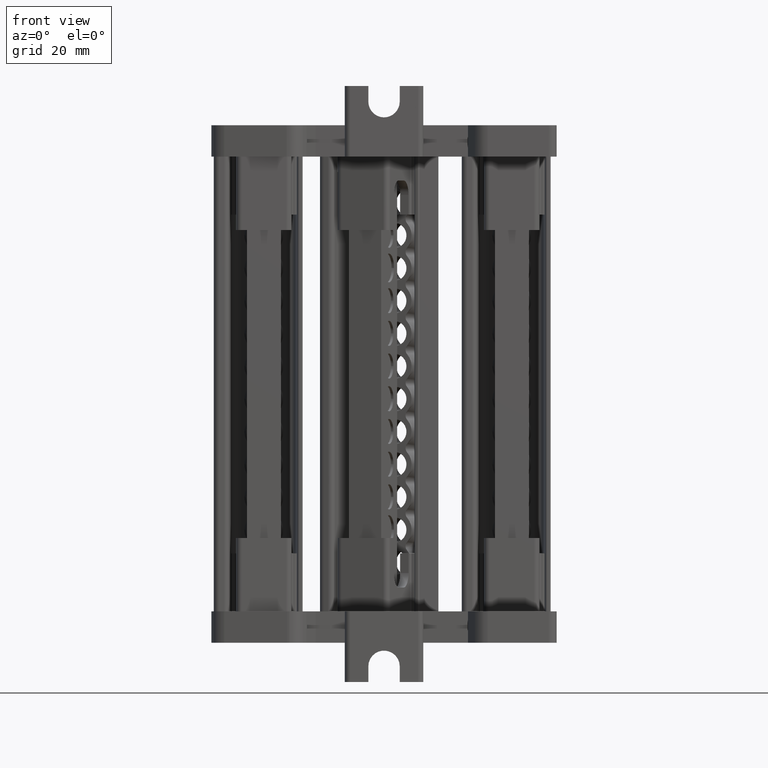
[diagram: clean part render]
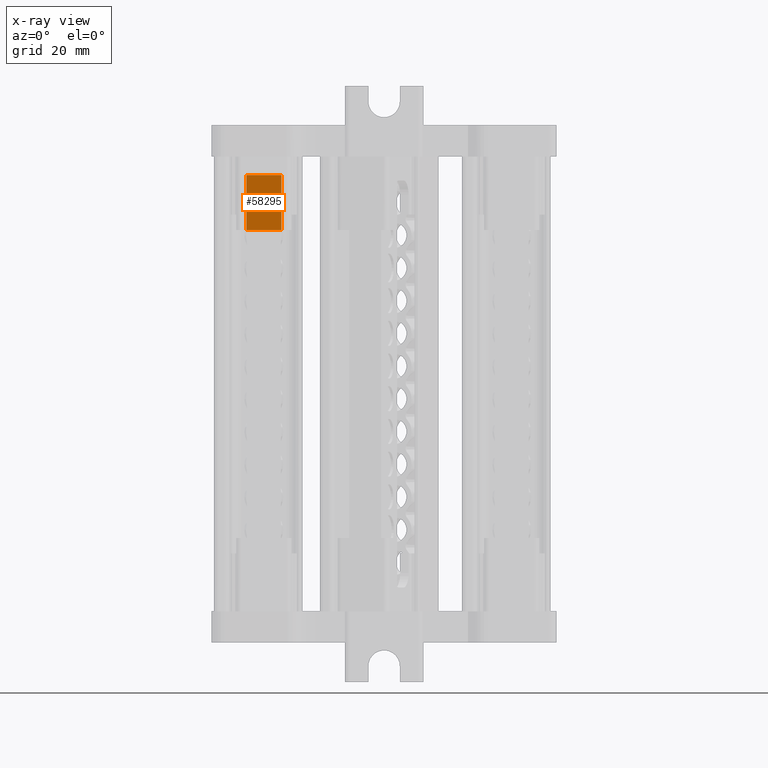
[diagram: x-ray — body ghosted, one internal face saturated and labeled with its STEP entity id]
A machine part, front view, then the same camera in x-ray: the body is ghosted and one INTERNAL B-rep face — a face not visible from any outside direction — is saturated and labeled: STEP entity #58295.
In plain terms, the highlighted planar face has unit normal (-0, -1, 0).
Its self-contained STEP definition (entity closure, byte-faithful):
#88 = DIRECTION ( 'NONE',  ( 0.0000000000000000000, 0.0000000000000000000, 1.000000000000000000 ) ) ;
#102 = CARTESIAN_POINT ( 'NONE',  ( -317.5186649147888700, 192.3930786830946700, 96.31158751801014300 ) ) ;
#103 = LINE ( 'NONE', #102, #22991 ) ;
#3835 = FACE_OUTER_BOUND ( 'NONE', #52525, .T. ) ;
#3862 = PLANE ( 'NONE',  #8841 ) ;
#3951 = DIRECTION ( 'NONE',  ( 1.000000000000000000, -1.661964172816390000E-014, 0.0000000000000000000 ) ) ;
#3954 = CARTESIAN_POINT ( 'NONE',  ( -324.1994130157307800, 192.3930786830947600, 96.31158751801014300 ) ) ;
#3973 = DIRECTION ( 'NONE',  ( -1.661964172816390000E-014, -1.000000000000000000, 0.0000000000000000000 ) ) ;
#8841 = AXIS2_PLACEMENT_3D ( 'NONE', #3954, #3973, #3951 ) ;
#9450 = VECTOR ( 'NONE', #35457, 1000.000000000000000 ) ;
#22991 = VECTOR ( 'NONE', #88, 1000.000000000000000 ) ;
#23678 = VECTOR ( 'NONE', #49574, 1000.000000000000000 ) ;
#23710 = VECTOR ( 'NONE', #47389, 1000.000000000000000 ) ;
#35451 = CARTESIAN_POINT ( 'NONE',  ( -324.1994130157307800, 192.3930786830947600, 96.31158751801014300 ) ) ;
#35457 = DIRECTION ( 'NONE',  ( -0.0000000000000000000, -0.0000000000000000000, -1.000000000000000000 ) ) ;
#35460 = LINE ( 'NONE', #35451, #9450 ) ;
#47224 = CARTESIAN_POINT ( 'NONE',  ( -317.5186649147888700, 192.3930786830943600, 96.78362721523144800 ) ) ;
#47259 = CARTESIAN_POINT ( 'NONE',  ( -317.5186649147888700, 192.3930786830946100, 86.29336666203809600 ) ) ;
#47307 = CARTESIAN_POINT ( 'NONE',  ( -324.1994130157307800, 192.3930786830946700, 96.78362721523144800 ) ) ;
#47331 = CARTESIAN_POINT ( 'NONE',  ( -324.1994130157307800, 192.3930786830946700, 86.29336666203809600 ) ) ;
#47389 = DIRECTION ( 'NONE',  ( -1.000000000000000000, -0.0000000000000000000, 0.0000000000000000000 ) ) ;
#47434 = CARTESIAN_POINT ( 'NONE',  ( -338.8552590806565900, 192.3930786830947600, 86.29336666203809600 ) ) ;
#47465 = LINE ( 'NONE', #47434, #23710 ) ;
#49544 = LINE ( 'NONE', #49592, #23678 ) ;
#49574 = DIRECTION ( 'NONE',  ( -1.000000000000000000, 2.763709470186517000E-032, -3.469446951942104800E-018 ) ) ;
#49592 = CARTESIAN_POINT ( 'NONE',  ( -317.7967814379477400, 192.3930786830942700, 96.78362721523146200 ) ) ;
#52525 = EDGE_LOOP ( 'NONE', ( #94804, #94727, #94716, #94753 ) ) ;
#57765 = EDGE_CURVE ( 'NONE', #118803, #118788, #103, .T. ) ;
#58295 = ADVANCED_FACE ( 'NONE', ( #3835 ), #3862, .F. ) ;
#79249 = EDGE_CURVE ( 'NONE', #118832, #118812, #35460, .T. ) ;
#79888 = EDGE_CURVE ( 'NONE', #118788, #118832, #49544, .T. ) ;
#79917 = EDGE_CURVE ( 'NONE', #118803, #118812, #47465, .T. ) ;
#94716 = ORIENTED_EDGE ( 'NONE', *, *, #79917, .T. ) ;
#94727 = ORIENTED_EDGE ( 'NONE', *, *, #57765, .F. ) ;
#94753 = ORIENTED_EDGE ( 'NONE', *, *, #79249, .F. ) ;
#94804 = ORIENTED_EDGE ( 'NONE', *, *, #79888, .F. ) ;
#118788 = VERTEX_POINT ( 'NONE', #47224 ) ;
#118803 = VERTEX_POINT ( 'NONE', #47259 ) ;
#118812 = VERTEX_POINT ( 'NONE', #47331 ) ;
#118832 = VERTEX_POINT ( 'NONE', #47307 ) ;